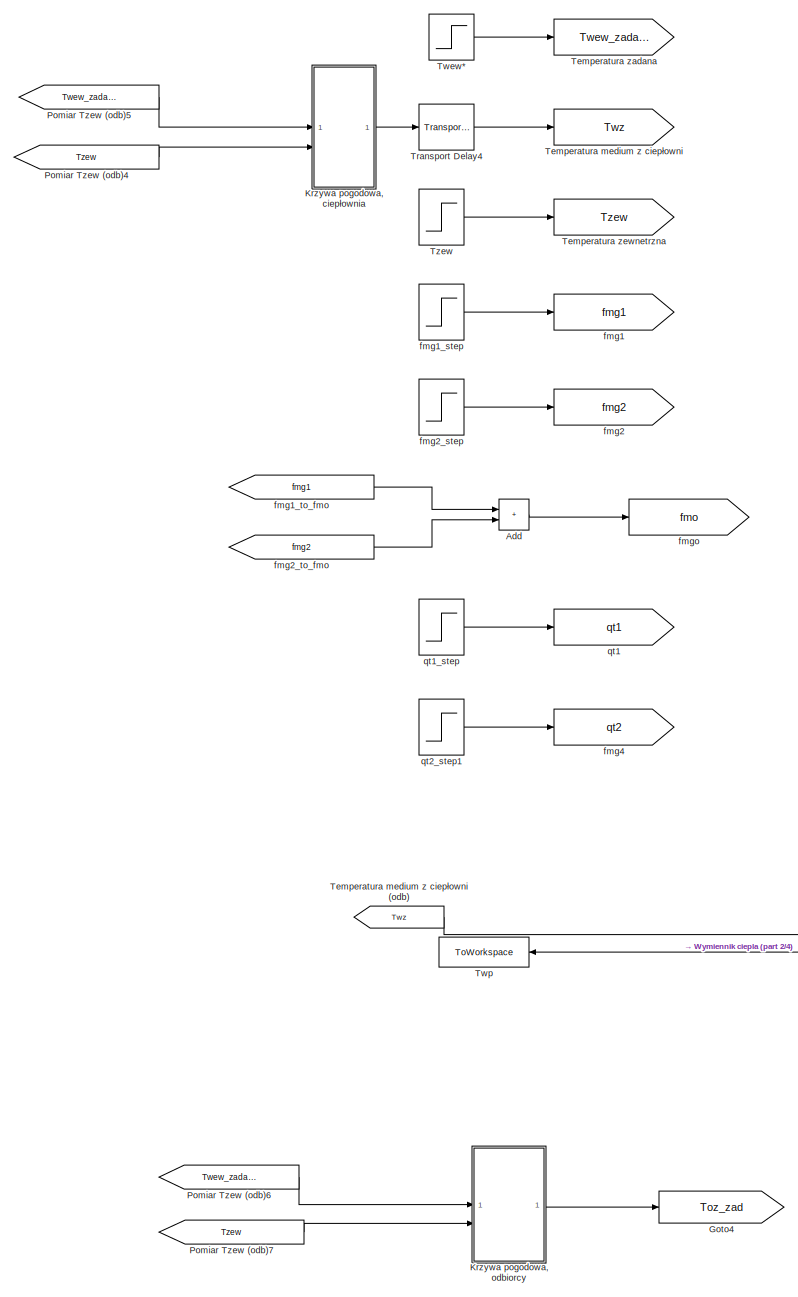
[diagram: root canvas - part 1/4, left side, full height]
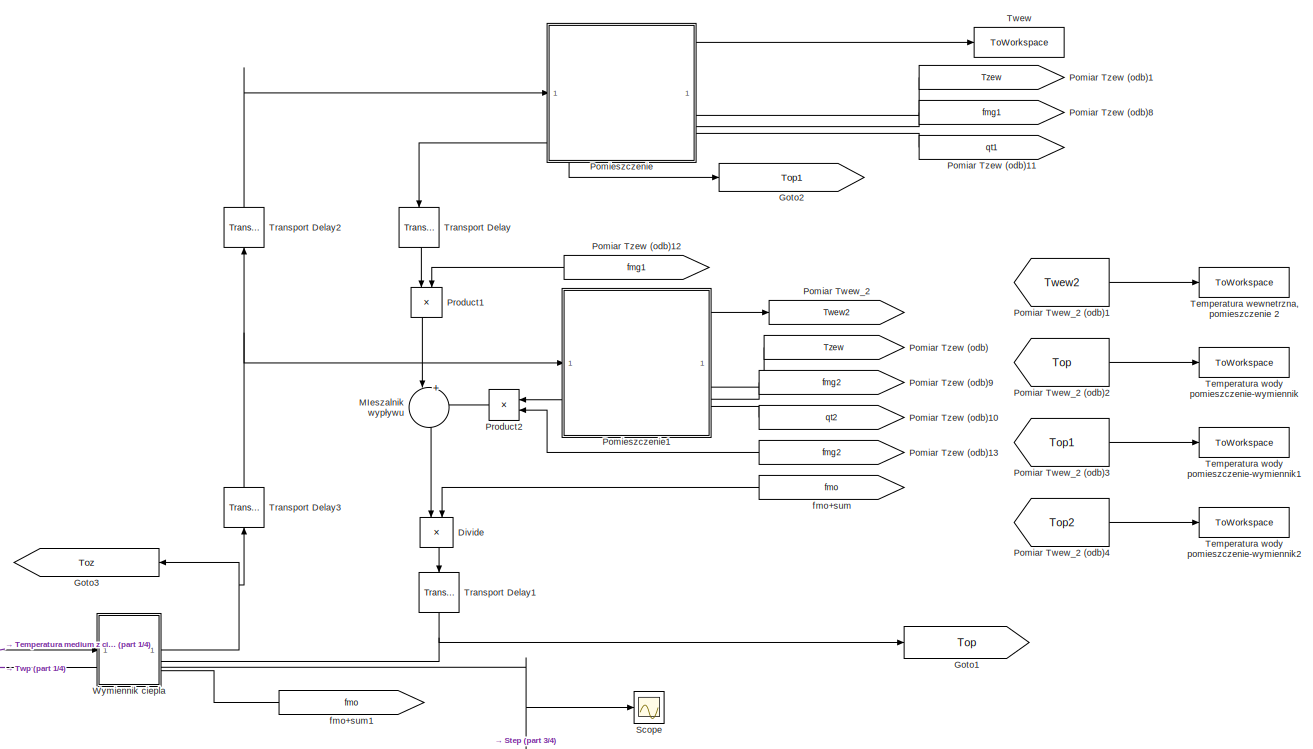
[diagram: root canvas - part 2/4, middle right region]
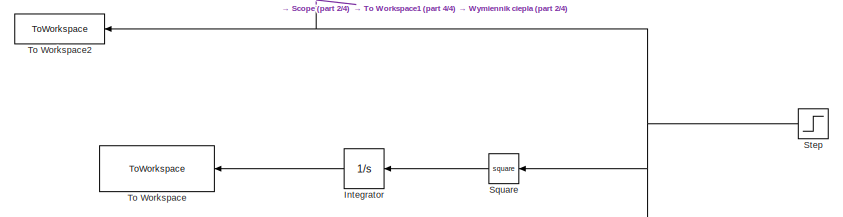
[diagram: root canvas - part 3/4, bottom right region]
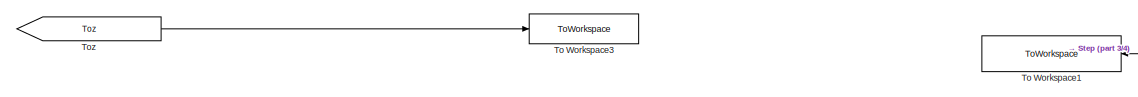
[diagram: root canvas - part 4/4, bottom center region]
MODEL slx_49e730d212ff
KIND model
CONFIG AbsTol = auto
CONFIG EnableMultiTasking = off
CONFIG FixedStep = 0.1
CONFIG MaxStep = 10
CONFIG MinStep = auto
CONFIG RelTol = 1e-3
CONFIG SampleTimeConstraint = Unconstrained
CONFIG SolverName = VariableStepAuto
CONFIG StartTime = 0.0
CONFIG StopTime = 10.0
WORKSPACE source: mxarray member
WORKSPACE Var = 0
BLOCK [Sum] Add
  IconShape = rectangular
BLOCK [Product] Divide
  Inputs = */
  NameLocation = left
BLOCK [Goto] Goto1
  GotoTag = Top
BLOCK [Goto] Goto2
  GotoTag = Top1
BLOCK [Goto] Goto3
  GotoTag = Toz
  NameLocation = top
BLOCK [Goto] Goto4
  GotoTag = Toz_zad
BLOCK [Integrator] Integrator
  NameLocation = top
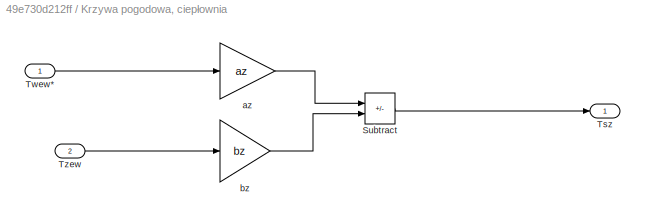
BLOCK [SubSystem] Krzywa pogodowa, ciepłownia
BLOCK [Sum] Krzywa pogodowa, ciepłownia/Subtract
  IconShape = rectangular
  Inputs = +-
BLOCK [Outport] Krzywa pogodowa, ciepłownia/Tsz
BLOCK [Inport] Krzywa pogodowa, ciepłownia/Twew*
BLOCK [Inport] Krzywa pogodowa, ciepłownia/Tzew
  Port = 2
BLOCK [Gain] Krzywa pogodowa, ciepłownia/az
  Gain = az
BLOCK [Gain] Krzywa pogodowa, ciepłownia/bz
  Gain = bz
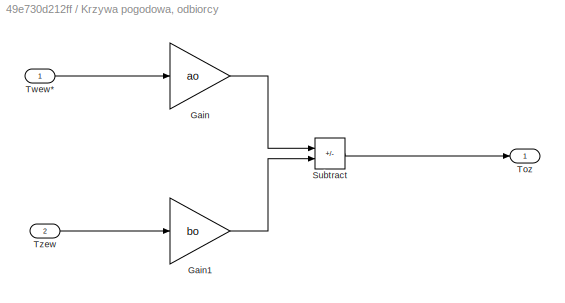
BLOCK [SubSystem] Krzywa pogodowa, odbiorcy
BLOCK [Gain] Krzywa pogodowa, odbiorcy/Gain
  Gain = ao
BLOCK [Gain] Krzywa pogodowa, odbiorcy/Gain1
  Gain = bo
BLOCK [Sum] Krzywa pogodowa, odbiorcy/Subtract
  IconShape = rectangular
  Inputs = +-
BLOCK [Outport] Krzywa pogodowa, odbiorcy/Toz
BLOCK [Inport] Krzywa pogodowa, odbiorcy/Twew*
BLOCK [Inport] Krzywa pogodowa, odbiorcy/Tzew
  Port = 2
BLOCK [Sum] MIeszalnik wypływu
  Inputs = |++
  NameLocation = left
BLOCK [Goto] Pomiar Twew_2
  GotoTag = Twew2
  NameLocation = right
BLOCK [From] Pomiar Twew_2 (odb)1
  GotoTag = Twew2
BLOCK [From] Pomiar Twew_2 (odb)2
  GotoTag = Top
BLOCK [From] Pomiar Twew_2 (odb)3
  GotoTag = Top1
BLOCK [From] Pomiar Twew_2 (odb)4
  GotoTag = Top2
BLOCK [From] Pomiar Tzew (odb)
  GotoTag = Tzew
  NameLocation = right
BLOCK [From] Pomiar Tzew (odb)1
  GotoTag = Tzew
  NameLocation = right
BLOCK [From] Pomiar Tzew (odb)10
  GotoTag = qt2
  NameLocation = right
BLOCK [From] Pomiar Tzew (odb)11
  GotoTag = qt1
  NameLocation = right
BLOCK [From] Pomiar Tzew (odb)12
  GotoTag = fmg1
  NameLocation = right
BLOCK [From] Pomiar Tzew (odb)13
  GotoTag = fmg2
  NameLocation = right
BLOCK [From] Pomiar Tzew (odb)4
  GotoTag = Tzew
  NameLocation = top
BLOCK [From] Pomiar Tzew (odb)5
  GotoTag = Twew_zadana
  NameLocation = top
BLOCK [From] Pomiar Tzew (odb)6
  GotoTag = Twew_zadana
  NameLocation = top
BLOCK [From] Pomiar Tzew (odb)7
  GotoTag = Tzew
  NameLocation = top
BLOCK [From] Pomiar Tzew (odb)8
  GotoTag = fmg1
  NameLocation = right
BLOCK [From] Pomiar Tzew (odb)9
  GotoTag = fmg2
  NameLocation = right
BLOCK [SubSystem] Pomieszczenie
  PortSchema = {"entries":[{"content":{"sides":[{"content":{"connectorIds":["In1","Out1"]},"type":"ConnectorPlacement.EquallySpacedRectSide","uuid":"8531bf00-72e2-4413-af12-728660d5b7ed"},{"content":{"connectorIds":["Out2","In2","In3","In4"],"side":"RIGHT"},"type":"ConnectorPlacement.EquallySpacedRectSide","uuid":"61dc3c29-eecf-49ab-a3f8-5b1de1949346"},{"content":{"side":"TOP"},"type":"ConnectorPlacement.Equally...<+247ch>
  ReferencedSubsystem = Pomieszczenie
BLOCK [SubSystem] Pomieszczenie1
  PortSchema = {"entries":[{"content":{"sides":[{"content":{"connectorIds":["In1","Out1"]},"type":"ConnectorPlacement.EquallySpacedRectSide","uuid":"8531bf00-72e2-4413-af12-728660d5b7ed"},{"content":{"connectorIds":["Out2","In2","In3","In4"],"side":"RIGHT"},"type":"ConnectorPlacement.EquallySpacedRectSide","uuid":"61dc3c29-eecf-49ab-a3f8-5b1de1949346"},{"content":{"side":"TOP"},"type":"ConnectorPlacement.Equally...<+247ch>
  ReferencedSubsystem = Pomieszczenie
BLOCK [Product] Product1
  NameLocation = left
BLOCK [Product] Product2
  NameLocation = top
BLOCK [Scope] Scope
  Floating = off
  NumInputPorts = 1
  ScopeSpecificationString = Simulink.scopes.TimeScopeBlockCfg('CurrentConfiguration', extmgr.ConfigurationSet(extmgr.Configuration('Core','General UI',true),extmgr.Configuration('Core','Source UI',true),extmgr.Configuration('Sources','WiredSimulink',true),extmgr.Configuration('Visuals','Time Domain',true),extmgr.Configuration('Tools','Plot Navigation',true),extmgr.Configuration('Tools','Measurements',true)),'Version','2023b'...<+1ch>
BLOCK [Math] Square
  NameLocation = top
  Operator = square
BLOCK [Step] Step
  After = fmw_0 + deltafmw
  Before = fmw_0
  NameLocation = top
  SampleTime = 0
  Time = t_fmw
BLOCK [Goto] Temperatura medium z ciepłowni
  GotoTag = Twz
BLOCK [From] Temperatura medium z ciepłowni (odb)
  GotoTag = Twz
  NameLocation = top
BLOCK [ToWorkspace] Temperatura wewnetrzna, pomieszczenie 2
  FixptAsFi = on
  MaxDataPoints = inf
  SampleTime = -1
  Save2DSignal = 2-D array (concatenate along first dimension)
  VariableName = Twew1
BLOCK [ToWorkspace] Temperatura wody pomieszczenie-wymiennik
  FixptAsFi = on
  MaxDataPoints = inf
  SampleTime = -1
  Save2DSignal = 2-D array (concatenate along first dimension)
  VariableName = Top
BLOCK [ToWorkspace] Temperatura wody pomieszczenie-wymiennik1
  FixptAsFi = on
  MaxDataPoints = inf
  SampleTime = -1
  SaveFormat = Timeseries
  VariableName = Top1
BLOCK [ToWorkspace] Temperatura wody pomieszczenie-wymiennik2
  FixptAsFi = on
  MaxDataPoints = inf
  SampleTime = -1
  SaveFormat = Timeseries
  VariableName = Top2
BLOCK [Goto] Temperatura zadana
  GotoTag = Twew_zadana
BLOCK [Goto] Temperatura zewnetrzna
  GotoTag = Tzew
BLOCK [ToWorkspace] To Workspace
  FixptAsFi = on
  MaxDataPoints = inf
  NameLocation = top
  SampleTime = -1
  VariableName = wsk_calkowy
BLOCK [ToWorkspace] To Workspace1
  FixptAsFi = on
  MaxDataPoints = inf
  NameLocation = top
  SampleTime = -1
  VariableName = uchyb
BLOCK [ToWorkspace] To Workspace2
  FixptAsFi = on
  MaxDataPoints = inf
  NameLocation = top
  SampleTime = -1
  VariableName = fmw
BLOCK [ToWorkspace] To Workspace3
  FixptAsFi = on
  MaxDataPoints = inf
  SampleTime = -1
  VariableName = Toz
BLOCK [From] Toz
  GotoTag = Toz
  NameLocation = top
BLOCK [TransportDelay] Transport Delay
  DelayTime = t_op_tr
  InitialOutput = T_gp0
  NameLocation = left
BLOCK [TransportDelay] Transport Delay1
  DelayTime = t_op_tr
  InitialOutput = T_gp0
  NameLocation = left
BLOCK [TransportDelay] Transport Delay2
  DelayTime = t_op_tr
  InitialOutput = T_oz0
  NameLocation = right
BLOCK [TransportDelay] Transport Delay3
  DelayTime = t_op_tr
  InitialOutput = T_oz0
  NameLocation = right
BLOCK [TransportDelay] Transport Delay4
  DelayTime = 1800
  InitialOutput = TwzN
BLOCK [ToWorkspace] Twew
  FixptAsFi = on
  MaxDataPoints = inf
  NameLocation = right
  SampleTime = -1
  Save2DSignal = 2-D array (concatenate along first dimension)
  VariableName = Twew
BLOCK [Step] Twew*
  After = T_wew_SP_0 + delta_Twew_SP
  Before = T_wew_SP_0
  SampleTime = 0
  Time = t_wew_SP
BLOCK [ToWorkspace] Twp
  FixptAsFi = on
  MaxDataPoints = inf
  NameLocation = top
  SampleTime = -1
  Save2DSignal = 2-D array (concatenate along first dimension)
  VariableName = Twp
BLOCK [Step] Tzew
  After = T_zew
  Before = T_zew0
  SampleTime = 0
  Time = t_Tzew
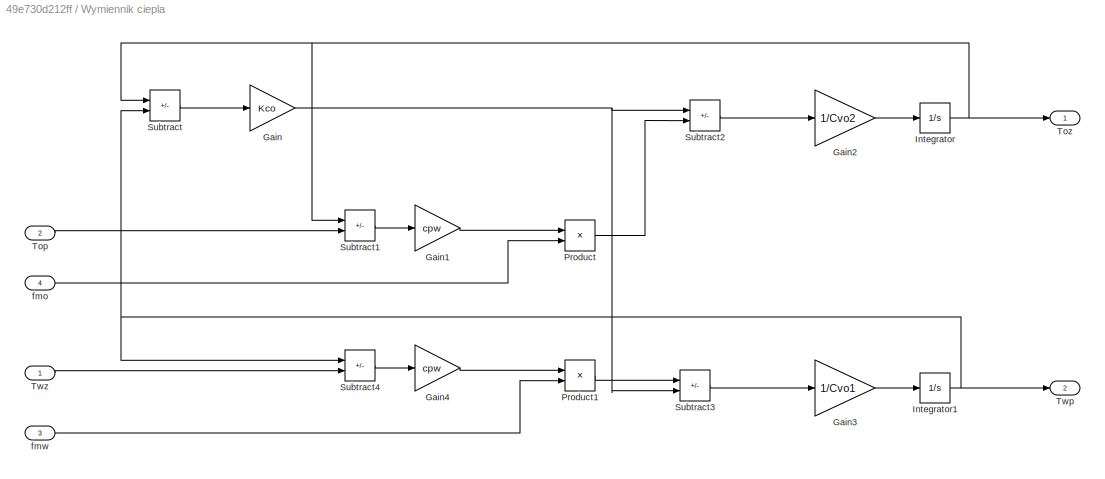
BLOCK [SubSystem] Wymiennik ciepla
  PortSchema = {"entries":[{"content":{"sides":[{"content":{"connectorIds":["In1","Out2"]},"type":"ConnectorPlacement.EquallySpacedRectSide","uuid":"d2a1b48e-0b7a-4274-8a7b-b9fce30bfded"},{"content":{"connectorIds":["Out1","In2","In3","In4"],"side":"RIGHT"},"type":"ConnectorPlacement.EquallySpacedRectSide","uuid":"703c2424-3a4a-4f57-8096-11f8c1d27324"},{"content":{"side":"TOP"},"type":"ConnectorPlacement.Equally...<+373ch>
BLOCK [Gain] Wymiennik ciepla/Gain
  Gain = Kco
BLOCK [Gain] Wymiennik ciepla/Gain1
  Gain = cpw
BLOCK [Gain] Wymiennik ciepla/Gain2
  Gain = 1/Cvo2
BLOCK [Gain] Wymiennik ciepla/Gain3
  Gain = 1/Cvo1
BLOCK [Gain] Wymiennik ciepla/Gain4
  Gain = cpw
BLOCK [Integrator] Wymiennik ciepla/Integrator
  InitialCondition = T_oz0
BLOCK [Integrator] Wymiennik ciepla/Integrator1
  InitialCondition = T_wp0
BLOCK [Product] Wymiennik ciepla/Product
BLOCK [Product] Wymiennik ciepla/Product1
BLOCK [Sum] Wymiennik ciepla/Subtract
  IconShape = rectangular
  Inputs = -+
BLOCK [Sum] Wymiennik ciepla/Subtract1
  IconShape = rectangular
  Inputs = +-
BLOCK [Sum] Wymiennik ciepla/Subtract2
  IconShape = rectangular
  Inputs = +-
BLOCK [Sum] Wymiennik ciepla/Subtract3
  IconShape = rectangular
  Inputs = +-
BLOCK [Sum] Wymiennik ciepla/Subtract4
  IconShape = rectangular
  Inputs = -+
BLOCK [Inport] Wymiennik ciepla/Top
  Port = 2
BLOCK [Outport] Wymiennik ciepla/Toz
BLOCK [Outport] Wymiennik ciepla/Twp
  Port = 2
BLOCK [Inport] Wymiennik ciepla/Twz
BLOCK [Inport] Wymiennik ciepla/fmo
  Port = 4
BLOCK [Inport] Wymiennik ciepla/fmw
  Port = 3
BLOCK [Goto] fmg1
  GotoTag = fmg1
BLOCK [Step] fmg1_step
  After = fmg1_0 + deltafmg1
  Before = fmg1_0
  SampleTime = 0
  Time = t_fmg1
BLOCK [From] fmg1_to_fmo
  GotoTag = fmg1
  NameLocation = left
BLOCK [Goto] fmg2
  GotoTag = fmg2
BLOCK [Step] fmg2_step
  After = fmg2_0 + deltafmg2
  Before = fmg2_0
  SampleTime = 0
  Time = t_fmg2
BLOCK [From] fmg2_to_fmo
  GotoTag = fmg2
  NameLocation = left
BLOCK [Goto] fmg4
  GotoTag = qt2
BLOCK [Goto] fmgo
  GotoTag = fmo
BLOCK [From] fmo+sum
  GotoTag = fmo
  NameLocation = right
BLOCK [From] fmo+sum1
  GotoTag = fmo
  NameLocation = right
BLOCK [Goto] qt1
  GotoTag = qt1
BLOCK [Step] qt1_step
  After = qt1_0 + delta_qt1
  Before = qt1_0
  SampleTime = 0
  Time = t_qt1
BLOCK [Step] qt2_step1
  After = qt2_0 + delta_qt2
  Before = qt2_0
  SampleTime = 0
  Time = t_qt2
LINE Add:1 -> fmgo:1
LINE Divide:1 -> Transport Delay1:1
LINE Integrator:1 -> To Workspace:1
LINE Krzywa pogodowa, ciepłownia/Subtract:1 -> Krzywa pogodowa, ciepłownia/Tsz:1
LINE Krzywa pogodowa, ciepłownia/Twew*:1 -> Krzywa pogodowa, ciepłownia/az:1
LINE Krzywa pogodowa, ciepłownia/Tzew:1 -> Krzywa pogodowa, ciepłownia/bz:1
LINE Krzywa pogodowa, ciepłownia/az:1 -> Krzywa pogodowa, ciepłownia/Subtract:1
LINE Krzywa pogodowa, ciepłownia/bz:1 -> Krzywa pogodowa, ciepłownia/Subtract:2
LINE Krzywa pogodowa, ciepłownia:1 -> Transport Delay4:1
LINE Krzywa pogodowa, odbiorcy/Gain1:1 -> Krzywa pogodowa, odbiorcy/Subtract:2
LINE Krzywa pogodowa, odbiorcy/Gain:1 -> Krzywa pogodowa, odbiorcy/Subtract:1
LINE Krzywa pogodowa, odbiorcy/Subtract:1 -> Krzywa pogodowa, odbiorcy/Toz:1
LINE Krzywa pogodowa, odbiorcy/Twew*:1 -> Krzywa pogodowa, odbiorcy/Gain:1
LINE Krzywa pogodowa, odbiorcy/Tzew:1 -> Krzywa pogodowa, odbiorcy/Gain1:1
LINE Krzywa pogodowa, odbiorcy:1 -> Goto4:1
LINE MIeszalnik wypływu:1 -> Divide:1
LINE Pomiar Twew_2 (odb)1:1 -> Temperatura wewnetrzna, pomieszczenie 2:1
LINE Pomiar Twew_2 (odb)2:1 -> Temperatura wody pomieszczenie-wymiennik:1
LINE Pomiar Twew_2 (odb)3:1 -> Temperatura wody pomieszczenie-wymiennik1:1
LINE Pomiar Twew_2 (odb)4:1 -> Temperatura wody pomieszczenie-wymiennik2:1
LINE Pomiar Tzew (odb)10:1 -> Pomieszczenie1:4
LINE Pomiar Tzew (odb)11:1 -> Pomieszczenie:4
LINE Pomiar Tzew (odb)12:1 -> Product1:2
LINE Pomiar Tzew (odb)13:1 -> Product2:2
LINE Pomiar Tzew (odb)1:1 -> Pomieszczenie:2
LINE Pomiar Tzew (odb)4:1 -> Krzywa pogodowa, ciepłownia:2
LINE Pomiar Tzew (odb)5:1 -> Krzywa pogodowa, ciepłownia:1
LINE Pomiar Tzew (odb)6:1 -> Krzywa pogodowa, odbiorcy:1
LINE Pomiar Tzew (odb)7:1 -> Krzywa pogodowa, odbiorcy:2
LINE Pomiar Tzew (odb)8:1 -> Pomieszczenie:3
LINE Pomiar Tzew (odb)9:1 -> Pomieszczenie1:3
LINE Pomiar Tzew (odb):1 -> Pomieszczenie1:2
LINE Pomieszczenie1:1 -> Product2:1
LINE Pomieszczenie1:2 -> Pomiar Twew_2:1
NET Pomieszczenie:1 -> Goto2:1, Transport Delay:1
LINE Pomieszczenie:2 -> Twew:1
LINE Product1:1 -> MIeszalnik wypływu:1
LINE Product2:1 -> MIeszalnik wypływu:2
LINE Square:1 -> Integrator:1
NET Step:1 -> Scope:1, Square:1, To Workspace1:1, To Workspace2:1, Wymiennik ciepla:3
LINE Temperatura medium z ciepłowni (odb):1 -> Wymiennik ciepla:1
LINE Toz:1 -> To Workspace3:1
NET Transport Delay1:1 -> Goto1:1, Wymiennik ciepla:2
LINE Transport Delay2:1 -> Pomieszczenie:1
NET Transport Delay3:1 -> Pomieszczenie1:1, Transport Delay2:1
LINE Transport Delay4:1 -> Temperatura medium z ciepłowni:1
LINE Transport Delay:1 -> Product1:1
LINE Twew*:1 -> Temperatura zadana:1
LINE Tzew:1 -> Temperatura zewnetrzna:1
LINE Wymiennik ciepla/Gain1:1 -> Wymiennik ciepla/Product:1
LINE Wymiennik ciepla/Gain2:1 -> Wymiennik ciepla/Integrator:1
LINE Wymiennik ciepla/Gain3:1 -> Wymiennik ciepla/Integrator1:1
LINE Wymiennik ciepla/Gain4:1 -> Wymiennik ciepla/Product1:1
NET Wymiennik ciepla/Gain:1 -> Wymiennik ciepla/Subtract2:1, Wymiennik ciepla/Subtract3:2
NET Wymiennik ciepla/Integrator1:1 -> Wymiennik ciepla/Subtract4:1, Wymiennik ciepla/Subtract:2, Wymiennik ciepla/Twp:1
NET Wymiennik ciepla/Integrator:1 -> Wymiennik ciepla/Subtract1:1, Wymiennik ciepla/Subtract:1, Wymiennik ciepla/Toz:1
LINE Wymiennik ciepla/Product1:1 -> Wymiennik ciepla/Subtract3:1
LINE Wymiennik ciepla/Product:1 -> Wymiennik ciepla/Subtract2:2
LINE Wymiennik ciepla/Subtract1:1 -> Wymiennik ciepla/Gain1:1
LINE Wymiennik ciepla/Subtract2:1 -> Wymiennik ciepla/Gain2:1
LINE Wymiennik ciepla/Subtract3:1 -> Wymiennik ciepla/Gain3:1
LINE Wymiennik ciepla/Subtract4:1 -> Wymiennik ciepla/Gain4:1
LINE Wymiennik ciepla/Subtract:1 -> Wymiennik ciepla/Gain:1
LINE Wymiennik ciepla/Top:1 -> Wymiennik ciepla/Subtract1:2
LINE Wymiennik ciepla/Twz:1 -> Wymiennik ciepla/Subtract4:2
LINE Wymiennik ciepla/fmo:1 -> Wymiennik ciepla/Product:2
LINE Wymiennik ciepla/fmw:1 -> Wymiennik ciepla/Product1:2
NET Wymiennik ciepla:1 -> Goto3:1, Transport Delay3:1
LINE Wymiennik ciepla:2 -> Twp:1
LINE fmg1_step:1 -> fmg1:1
LINE fmg1_to_fmo:1 -> Add:1
LINE fmg2_step:1 -> fmg2:1
LINE fmg2_to_fmo:1 -> Add:2
LINE fmo+sum1:1 -> Wymiennik ciepla:4
LINE fmo+sum:1 -> Divide:2
LINE qt1_step:1 -> qt1:1
LINE qt2_step1:1 -> fmg4:1
note: NET lines group one-source signal fan-out (src -> all destinations, sorted); 1:1 wires keep LINE
